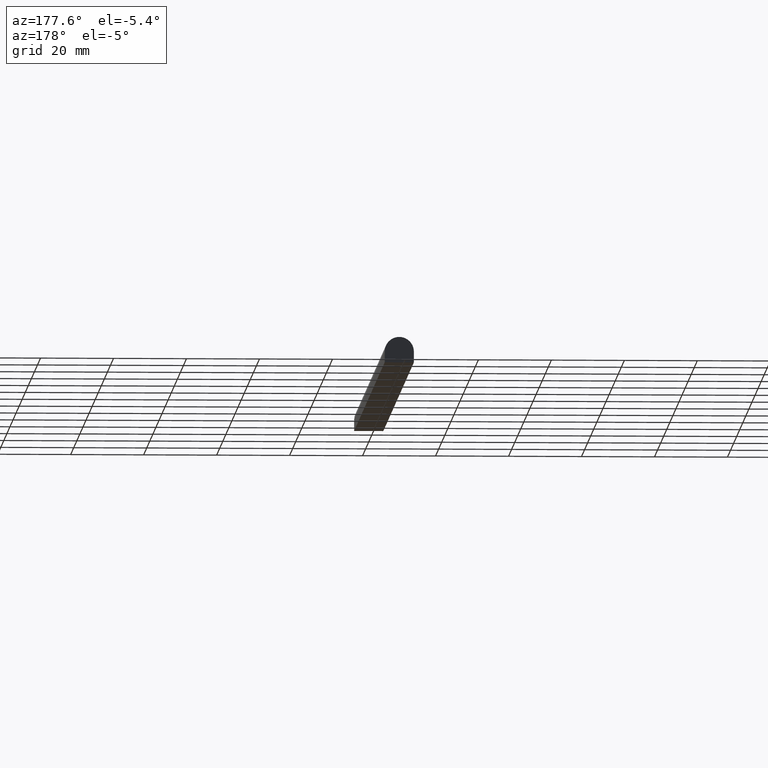
[diagram: clean part render]
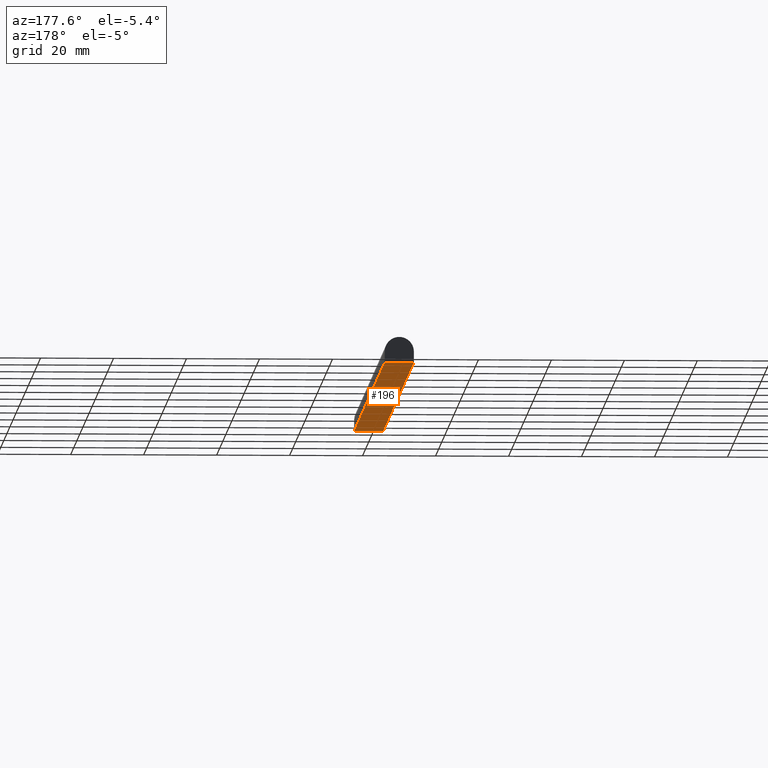
[diagram: same view with one face highlighted and labeled with its STEP entity id]
A machine part, auxiliary view. The second image highlights one B-rep face of the part: STEP entity #196.
In plain terms, the highlighted planar face has unit normal (0, 0, -1).
Its self-contained STEP definition (entity closure, byte-faithful):
#15 = CARTESIAN_POINT ( 'NONE',  ( -4.000000000000000000, 1000.000000000000000, -3.500000000000000000 ) ) ;
#28 = VERTEX_POINT ( 'NONE', #111 ) ;
#32 = VECTOR ( 'NONE', #202, 1000.000000000000000 ) ;
#35 = DIRECTION ( 'NONE',  ( 1.000000000000000000, -0.0000000000000000000, -0.0000000000000000000 ) ) ;
#36 = PLANE ( 'NONE',  #118 ) ;
#37 = ORIENTED_EDGE ( 'NONE', *, *, #175, .T. ) ;
#69 = VECTOR ( 'NONE', #35, 1000.000000000000000 ) ;
#71 = LINE ( 'NONE', #239, #84 ) ;
#77 = CARTESIAN_POINT ( 'NONE',  ( 0.0000000000000000000, 0.0000000000000000000, -3.500000000000000000 ) ) ;
#82 = LINE ( 'NONE', #148, #32 ) ;
#84 = VECTOR ( 'NONE', #179, 1000.000000000000000 ) ;
#87 = ORIENTED_EDGE ( 'NONE', *, *, #188, .F. ) ;
#91 = FACE_OUTER_BOUND ( 'NONE', #232, .T. ) ;
#98 = ORIENTED_EDGE ( 'NONE', *, *, #141, .T. ) ;
#100 = CARTESIAN_POINT ( 'NONE',  ( -4.000000000000000000, 0.0000000000000000000, -3.500000000000000000 ) ) ;
#109 = ORIENTED_EDGE ( 'NONE', *, *, #194, .F. ) ;
#111 = CARTESIAN_POINT ( 'NONE',  ( 4.000000000000000000, 200.0000000000000000, -3.500000000000000000 ) ) ;
#118 = AXIS2_PLACEMENT_3D ( 'NONE', #15, #132, #150 ) ;
#125 = VECTOR ( 'NONE', #165, 1000.000000000000000 ) ;
#132 = DIRECTION ( 'NONE',  ( 0.0000000000000000000, 0.0000000000000000000, -1.000000000000000000 ) ) ;
#141 = EDGE_CURVE ( 'NONE', #28, #240, #171, .T. ) ;
#142 = CARTESIAN_POINT ( 'NONE',  ( 4.000000000000000000, 0.0000000000000000000, -3.500000000000000000 ) ) ;
#143 = VERTEX_POINT ( 'NONE', #236 ) ;
#148 = CARTESIAN_POINT ( 'NONE',  ( 0.0000000000000000000, 200.0000000000000000, -3.500000000000000000 ) ) ;
#150 = DIRECTION ( 'NONE',  ( -1.000000000000000000, 0.0000000000000000000, 0.0000000000000000000 ) ) ;
#154 = LINE ( 'NONE', #77, #69 ) ;
#165 = DIRECTION ( 'NONE',  ( 0.0000000000000000000, -1.000000000000000000, 0.0000000000000000000 ) ) ;
#171 = LINE ( 'NONE', #224, #125 ) ;
#175 = EDGE_CURVE ( 'NONE', #143, #28, #82, .T. ) ;
#179 = DIRECTION ( 'NONE',  ( 0.0000000000000000000, -1.000000000000000000, 0.0000000000000000000 ) ) ;
#188 = EDGE_CURVE ( 'NONE', #143, #190, #71, .T. ) ;
#190 = VERTEX_POINT ( 'NONE', #100 ) ;
#194 = EDGE_CURVE ( 'NONE', #190, #240, #154, .T. ) ;
#196 = ADVANCED_FACE ( 'NONE', ( #91 ), #36, .T. ) ;
#202 = DIRECTION ( 'NONE',  ( 1.000000000000000000, -0.0000000000000000000, -0.0000000000000000000 ) ) ;
#224 = CARTESIAN_POINT ( 'NONE',  ( 4.000000000000000000, 1000.000000000000000, -3.500000000000000000 ) ) ;
#232 = EDGE_LOOP ( 'NONE', ( #109, #87, #37, #98 ) ) ;
#236 = CARTESIAN_POINT ( 'NONE',  ( -4.000000000000000000, 200.0000000000000000, -3.500000000000000000 ) ) ;
#239 = CARTESIAN_POINT ( 'NONE',  ( -4.000000000000000000, 1000.000000000000000, -3.500000000000000000 ) ) ;
#240 = VERTEX_POINT ( 'NONE', #142 ) ;